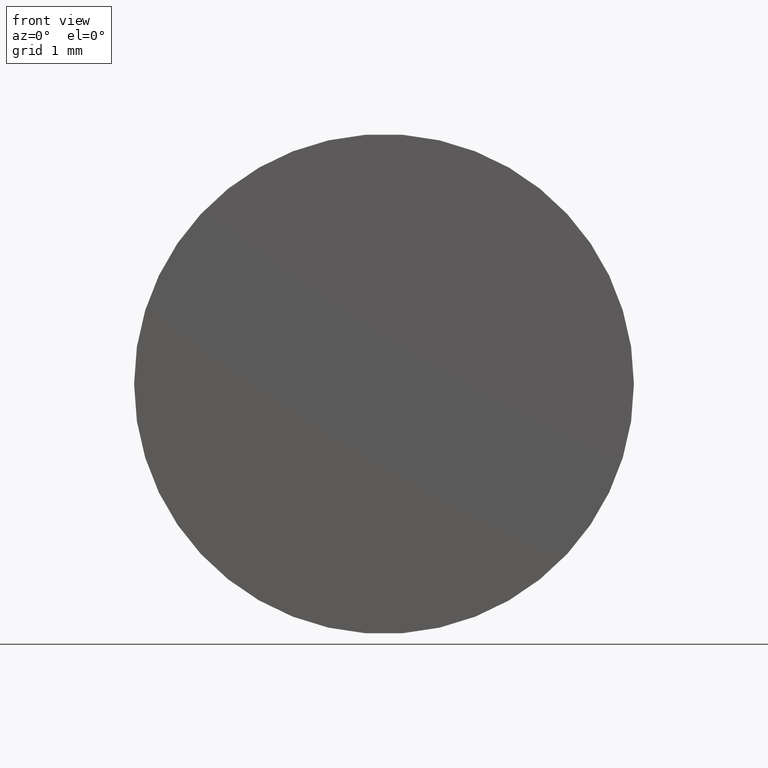
[diagram: clean part render]
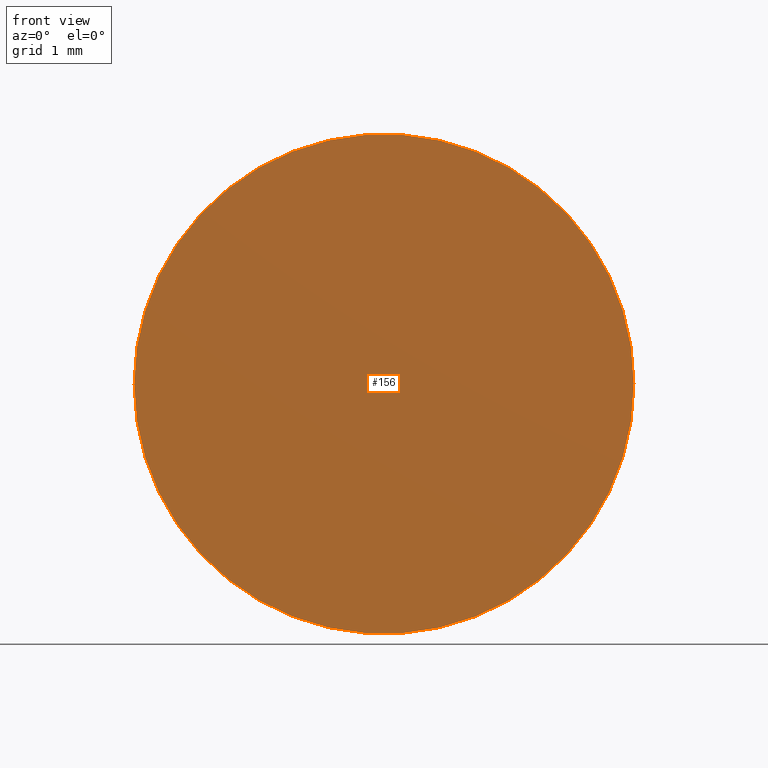
[diagram: same view with one face highlighted and labeled with its STEP entity id]
A machine part, front view. The second image highlights one B-rep face of the part: STEP entity #156.
In plain terms, the highlighted planar face has unit normal (0, -1, 0).
Its self-contained STEP definition (entity closure, byte-faithful):
#4 = CARTESIAN_POINT ( 'NONE',  ( -3.000000000000000000, -4.792096170576599372E-17, 0.000000000000000000 ) ) ;
#18 = PLANE ( 'NONE',  #114 ) ;
#34 = DIRECTION ( 'NONE',  ( 1.597365390192199380E-17, -1.000000000000000000, 0.000000000000000000 ) ) ;
#72 = VERTEX_POINT ( 'NONE', #110 ) ;
#73 = CIRCLE ( 'NONE', #127, 3.000000000000000000 ) ;
#83 = CARTESIAN_POINT ( 'NONE',  ( 0.000000000000000000, 0.000000000000000000, 0.000000000000000000 ) ) ;
#85 = EDGE_CURVE ( 'NONE', #197, #72, #73, .T. ) ;
#90 = CARTESIAN_POINT ( 'NONE',  ( -3.827364284675817636E-34, 2.396048085288299686E-17, 0.000000000000000000 ) ) ;
#110 = CARTESIAN_POINT ( 'NONE',  ( 3.000000000000000000, 4.792096170576599372E-17, 3.673940397442059868E-16 ) ) ;
#112 = DIRECTION ( 'NONE',  ( -1.597365390192199688E-17, 1.000000000000000000, -0.000000000000000000 ) ) ;
#114 = AXIS2_PLACEMENT_3D ( 'NONE', #90, #34, #149 ) ;
#116 = FACE_OUTER_BOUND ( 'NONE', #147, .T. ) ;
#127 = AXIS2_PLACEMENT_3D ( 'NONE', #170, #112, #172 ) ;
#143 = EDGE_CURVE ( 'NONE', #72, #197, #159, .T. ) ;
#144 = DIRECTION ( 'NONE',  ( -1.597365390192199688E-17, 1.000000000000000000, -0.000000000000000000 ) ) ;
#147 = EDGE_LOOP ( 'NONE', ( #166, #157 ) ) ;
#149 = DIRECTION ( 'NONE',  ( 1.000000000000000000, 1.597365390192199380E-17, 0.000000000000000000 ) ) ;
#153 = AXIS2_PLACEMENT_3D ( 'NONE', #83, #144, #190 ) ;
#156 = ADVANCED_FACE ( 'NONE', ( #116 ), #18, .T. ) ;
#157 = ORIENTED_EDGE ( 'NONE', *, *, #143, .F. ) ;
#159 = CIRCLE ( 'NONE', #153, 3.000000000000000000 ) ;
#166 = ORIENTED_EDGE ( 'NONE', *, *, #85, .F. ) ;
#170 = CARTESIAN_POINT ( 'NONE',  ( 0.000000000000000000, 0.000000000000000000, 0.000000000000000000 ) ) ;
#172 = DIRECTION ( 'NONE',  ( -1.000000000000000000, -1.597365390192199688E-17, 0.000000000000000000 ) ) ;
#190 = DIRECTION ( 'NONE',  ( -1.000000000000000000, -1.597365390192199688E-17, 0.000000000000000000 ) ) ;
#197 = VERTEX_POINT ( 'NONE', #4 ) ;